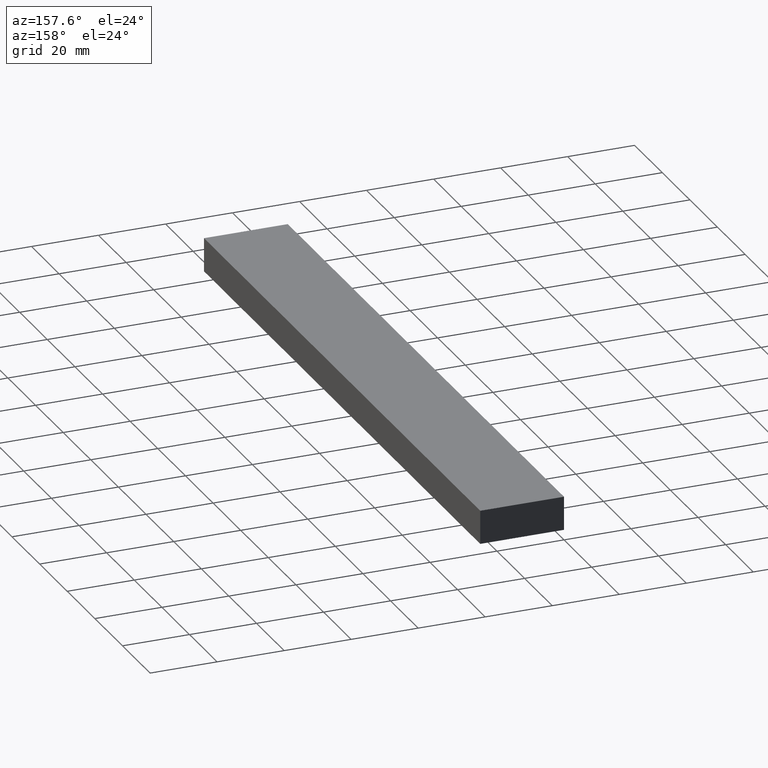
[diagram: clean part render]
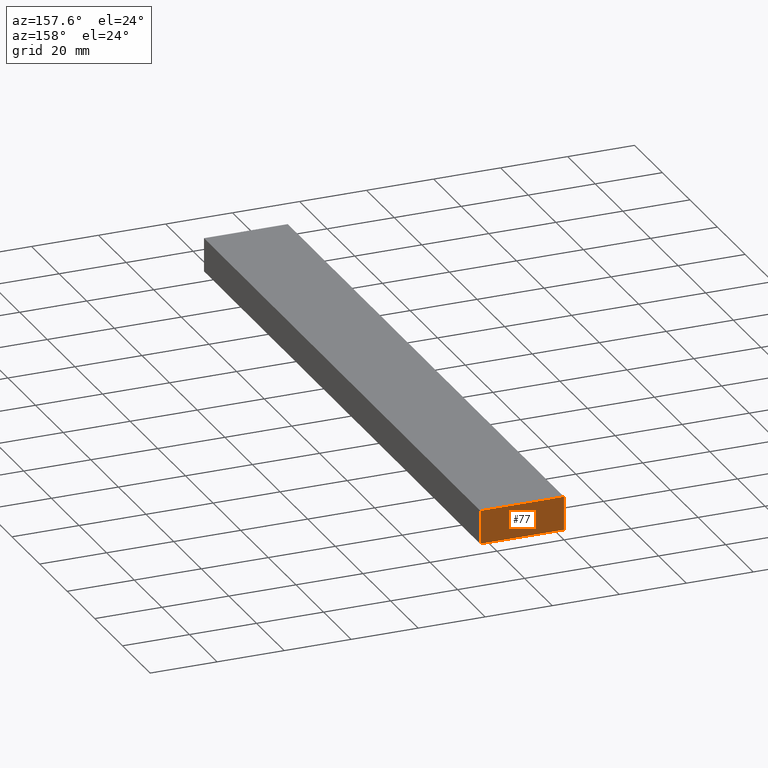
[diagram: same view with one face highlighted and labeled with its STEP entity id]
A machine part, auxiliary view. The second image highlights one B-rep face of the part: STEP entity #77.
In plain terms, the highlighted planar face has unit normal (0, 1, 0).
Its self-contained STEP definition (entity closure, byte-faithful):
#8 = EDGE_CURVE ( 'NONE', #180, #64, #222, .T. ) ;
#11 = LINE ( 'NONE', #60, #208 ) ;
#13 = EDGE_CURVE ( 'NONE', #76, #127, #45, .T. ) ;
#17 = EDGE_LOOP ( 'NONE', ( #151, #190, #101, #146 ) ) ;
#23 = DIRECTION ( 'NONE',  ( 0.0000000000000000000, 0.0000000000000000000, 1.000000000000000000 ) ) ;
#25 = DIRECTION ( 'NONE',  ( 1.000000000000000000, 0.0000000000000000000, 0.0000000000000000000 ) ) ;
#27 = EDGE_CURVE ( 'NONE', #64, #76, #11, .T. ) ;
#45 = LINE ( 'NONE', #221, #229 ) ;
#52 = DIRECTION ( 'NONE',  ( -1.000000000000000000, 0.0000000000000000000, 0.0000000000000000000 ) ) ;
#60 = CARTESIAN_POINT ( 'NONE',  ( 0.0000000000000000000, 200.0000000000000000, 10.00000000000000000 ) ) ;
#63 = CARTESIAN_POINT ( 'NONE',  ( 0.0000000000000000000, 200.0000000000000000, 10.00000000000000000 ) ) ;
#64 = VERTEX_POINT ( 'NONE', #63 ) ;
#76 = VERTEX_POINT ( 'NONE', #189 ) ;
#77 = ADVANCED_FACE ( 'NONE', ( #123 ), #97, .T. ) ;
#85 = CARTESIAN_POINT ( 'NONE',  ( 25.00000000000000000, 200.0000000000000000, 0.0000000000000000000 ) ) ;
#97 = PLANE ( 'NONE',  #139 ) ;
#98 = CARTESIAN_POINT ( 'NONE',  ( 0.0000000000000000000, 200.0000000000000000, 0.0000000000000000000 ) ) ;
#101 = ORIENTED_EDGE ( 'NONE', *, *, #218, .T. ) ;
#115 = CARTESIAN_POINT ( 'NONE',  ( 0.0000000000000000000, 200.0000000000000000, 0.0000000000000000000 ) ) ;
#118 = DIRECTION ( 'NONE',  ( 1.000000000000000000, 0.0000000000000000000, 0.0000000000000000000 ) ) ;
#122 = CARTESIAN_POINT ( 'NONE',  ( 0.0000000000000000000, 200.0000000000000000, 0.0000000000000000000 ) ) ;
#123 = FACE_OUTER_BOUND ( 'NONE', #17, .T. ) ;
#127 = VERTEX_POINT ( 'NONE', #85 ) ;
#133 = VECTOR ( 'NONE', #23, 1000.000000000000000 ) ;
#139 = AXIS2_PLACEMENT_3D ( 'NONE', #98, #223, #118 ) ;
#140 = DIRECTION ( 'NONE',  ( 0.0000000000000000000, 0.0000000000000000000, -1.000000000000000000 ) ) ;
#146 = ORIENTED_EDGE ( 'NONE', *, *, #8, .T. ) ;
#151 = ORIENTED_EDGE ( 'NONE', *, *, #27, .T. ) ;
#172 = LINE ( 'NONE', #179, #173 ) ;
#173 = VECTOR ( 'NONE', #52, 1000.000000000000000 ) ;
#179 = CARTESIAN_POINT ( 'NONE',  ( 25.00000000000000000, 200.0000000000000000, 0.0000000000000000000 ) ) ;
#180 = VERTEX_POINT ( 'NONE', #122 ) ;
#189 = CARTESIAN_POINT ( 'NONE',  ( 25.00000000000000000, 200.0000000000000000, 10.00000000000000000 ) ) ;
#190 = ORIENTED_EDGE ( 'NONE', *, *, #13, .T. ) ;
#208 = VECTOR ( 'NONE', #25, 1000.000000000000000 ) ;
#218 = EDGE_CURVE ( 'NONE', #127, #180, #172, .T. ) ;
#221 = CARTESIAN_POINT ( 'NONE',  ( 25.00000000000000000, 200.0000000000000000, 10.00000000000000000 ) ) ;
#222 = LINE ( 'NONE', #115, #133 ) ;
#223 = DIRECTION ( 'NONE',  ( -0.0000000000000000000, 1.000000000000000000, 0.0000000000000000000 ) ) ;
#229 = VECTOR ( 'NONE', #140, 1000.000000000000000 ) ;